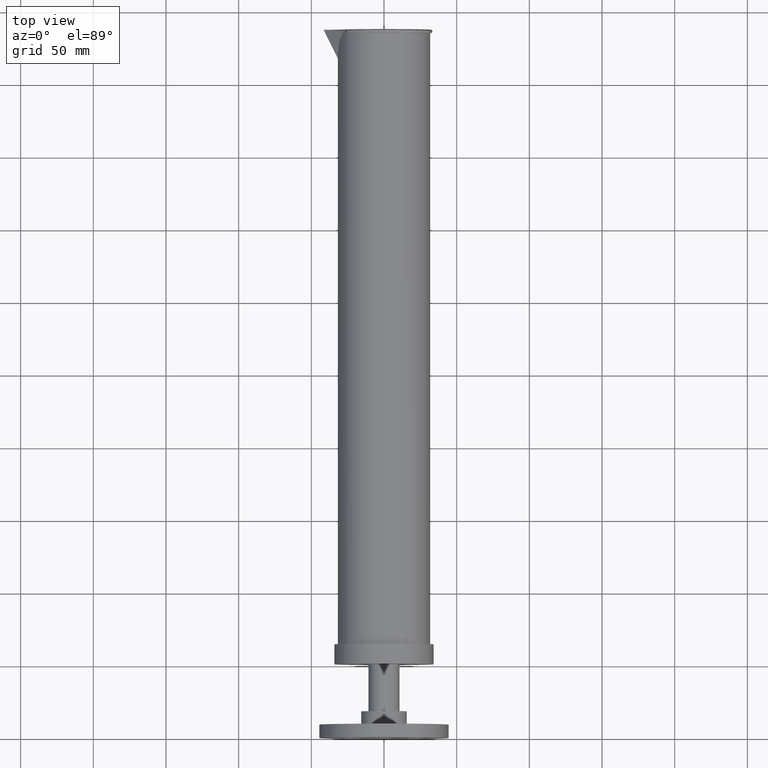
[diagram: clean part render]
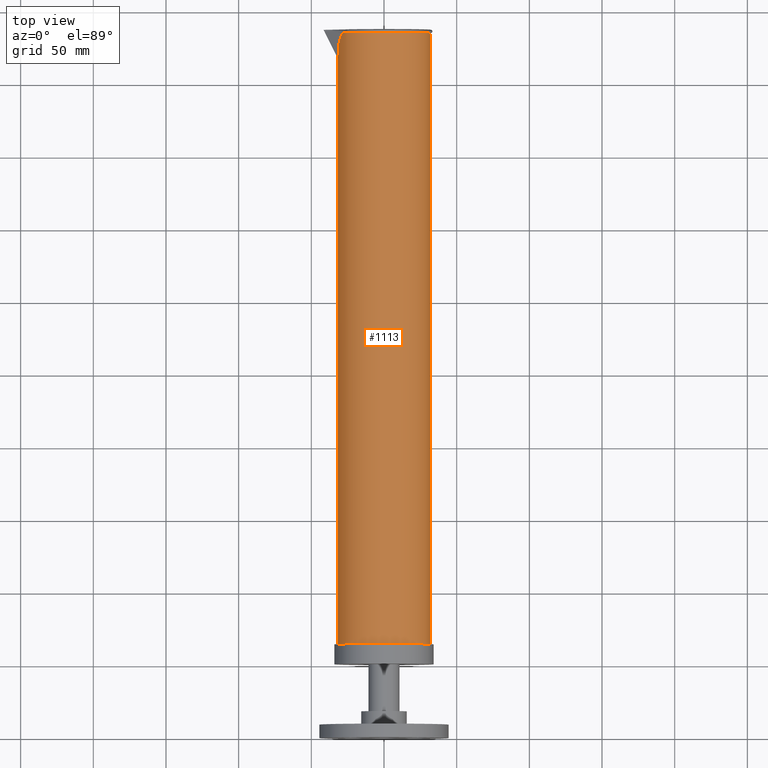
[diagram: same view with one face highlighted and labeled with its STEP entity id]
A machine part, top view. The second image highlights one B-rep face of the part: STEP entity #1113.
In plain terms, the highlighted cylindrical surface (bore or boss wall) has radius 31.75 mm, axis along (0, 1, 0).
Its self-contained STEP definition (entity closure, byte-faithful):
#1024=CARTESIAN_POINT('',(-2.364382558119146,-30.378656116473497,8.852632745656900));
#1025=DIRECTION('',(0.0,0.0,1.0));
#1026=DIRECTION('',(-1.0,0.0,0.0));
#1027=AXIS2_PLACEMENT_3D('',#1024,#1025,#1026);
#1028=CYLINDRICAL_SURFACE('',#1027,1.250000001583445);
#1029=CARTESIAN_POINT('',(-1.114382556535701,-30.378656116473497,5.087154505583708));
#1030=VERTEX_POINT('',#1029);
#1031=CARTESIAN_POINT('',(-2.364382558119146,-30.378656116473497,5.087154505583708));
#1032=DIRECTION('',(0.0,0.0,1.0));
#1033=DIRECTION('',(-1.0,0.0,0.0));
#1034=AXIS2_PLACEMENT_3D('',#1031,#1032,#1033);
#1035=CIRCLE('',#1034,1.250000001583445);
#1036=EDGE_CURVE('',#1030,#1030,#1035,.T.);
#1037=ORIENTED_EDGE('',*,*,#1036,.T.);
#1038=EDGE_LOOP('',(#1037));
#1039=FACE_OUTER_BOUND('',#1038,.T.);
#1040=CARTESIAN_POINT('',(-3.341220309703804,-31.158584325325979,21.645378963824765));
#1041=VERTEX_POINT('',#1040);
#1042=CARTESIAN_POINT('',(-3.341220310631171,-29.598727908905467,21.645378963824765));
#1043=VERTEX_POINT('',#1042);
#1044=CARTESIAN_POINT('',(-2.364382558119146,-30.378656116591252,21.645378963824765));
#1045=DIRECTION('',(0.0,0.0,1.0));
#1046=DIRECTION('',(0.0,1.0,0.0));
#1047=AXIS2_PLACEMENT_3D('',#1044,#1045,#1046);
#1048=CIRCLE('',#1047,1.250000001465692);
#1049=EDGE_CURVE('',#1041,#1043,#1048,.T.);
#1050=ORIENTED_EDGE('',*,*,#1049,.F.);
#1051=CARTESIAN_POINT('',(-3.450386105552418,-30.997603863394950,21.653376049139336));
#1052=VERTEX_POINT('',#1051);
#1053=CARTESIAN_POINT('',(-3.450386100374960,-30.997603860767338,21.653376045109937));
#1054=CARTESIAN_POINT('',(-3.433623127511878,-31.027016114185944,21.655735126720391));
#1055=CARTESIAN_POINT('',(-3.418783268275204,-31.051012905959805,21.655318096572923));
#1056=CARTESIAN_POINT('',(-3.379846094750808,-31.108324386794742,21.649424695242438));
#1057=CARTESIAN_POINT('',(-3.360547924611440,-31.134377041072142,21.645378963824768));
#1058=CARTESIAN_POINT('',(-3.341220309652552,-31.158584325437484,21.645378963824768));
#1059=B_SPLINE_CURVE_WITH_KNOTS('',3,(#1053,#1054,#1055,#1056,#1057,#1058),.UNSPECIFIED.,.F.,.U.,(4,2,4),(-0.497201823748352,-0.236041636832060,0.0),.UNSPECIFIED.);
#1060=EDGE_CURVE('',#1052,#1041,#1059,.T.);
#1061=ORIENTED_EDGE('',*,*,#1060,.F.);
#1062=CARTESIAN_POINT('',(-3.480099449047765,-30.942283495968262,21.650558399335758));
#1063=VERTEX_POINT('',#1062);
#1064=CARTESIAN_POINT('',(-3.480099449168018,-30.942283496030996,21.650558399194946));
#1065=CARTESIAN_POINT('',(-3.475380703157008,-30.951624391842671,21.650690459256030));
#1066=CARTESIAN_POINT('',(-3.470533562788341,-30.960926920469735,21.651013885413459));
#1067=CARTESIAN_POINT('',(-3.460634036850216,-30.979357550961261,21.651971703436107));
#1068=CARTESIAN_POINT('',(-3.455559856717240,-30.988526005998921,21.652608535752108));
#1069=CARTESIAN_POINT('',(-3.450386101202043,-30.997603859316140,21.653376044993813));
#1070=B_SPLINE_CURVE_WITH_KNOTS('',3,(#1064,#1065,#1066,#1067,#1068,#1069),.UNSPECIFIED.,.F.,.U.,(4,2,4),(-0.159599111343110,-0.079833047663906,0.0),.UNSPECIFIED.);
#1071=EDGE_CURVE('',#1063,#1052,#1070,.T.);
#1072=ORIENTED_EDGE('',*,*,#1071,.F.);
#1073=CARTESIAN_POINT('',(-3.614382559624060,-30.378656115811669,20.958554984119939));
#1074=VERTEX_POINT('',#1073);
#1075=CARTESIAN_POINT('',(-2.364382558119146,-30.378656116591252,18.429442900973680));
#1076=DIRECTION('',(0.714574982270093,0.603862678607960,0.353174829366584));
#1077=DIRECTION('',(0.269753532083915,0.227959408725256,-0.935557341856652));
#1078=AXIS2_PLACEMENT_3D('',#1075,#1076,#1077);
#1079=ELLIPSE('',#1078,3.539323580073795,1.250000001465692);
#1080=EDGE_CURVE('',#1074,#1063,#1079,.T.);
#1081=ORIENTED_EDGE('',*,*,#1080,.F.);
#1082=CARTESIAN_POINT('',(-3.480099447256235,-29.815028733584477,21.650558399173772));
#1083=VERTEX_POINT('',#1082);
#1084=CARTESIAN_POINT('',(-2.364382558119146,-30.378656116591252,18.429442898307780));
#1085=DIRECTION('',(0.714574982270093,-0.603862678607960,0.353174829366585));
#1086=DIRECTION('',(-0.269753532083915,0.227959408725256,0.935557341856652));
#1087=AXIS2_PLACEMENT_3D('',#1084,#1085,#1086);
#1088=ELLIPSE('',#1087,3.539323580073795,1.250000001465692);
#1089=EDGE_CURVE('',#1083,#1074,#1088,.T.);
#1090=ORIENTED_EDGE('',*,*,#1089,.F.);
#1091=CARTESIAN_POINT('',(-3.450386104983064,-29.759708368637742,21.653376048647338));
#1092=VERTEX_POINT('',#1091);
#1093=CARTESIAN_POINT('',(-3.450386100665245,-29.759708372688987,21.653376044531630));
#1094=CARTESIAN_POINT('',(-3.455559858552169,-29.768786230149328,21.652608534997054));
#1095=CARTESIAN_POINT('',(-3.460634041005848,-29.777954689485089,21.651971702495317));
#1096=CARTESIAN_POINT('',(-3.470533566325472,-29.796385319299837,21.651013884898422));
#1097=CARTESIAN_POINT('',(-3.475380703989423,-29.805687842823364,21.650690459035960));
#1098=CARTESIAN_POINT('',(-3.480099447437833,-29.815028733491051,21.650558399054532));
#1099=B_SPLINE_CURVE_WITH_KNOTS('',3,(#1093,#1094,#1095,#1096,#1097,#1098),.UNSPECIFIED.,.F.,.U.,(4,2,4),(-0.159568208852993,-0.079751073761785,-0.000000990013946),.UNSPECIFIED.);
#1100=EDGE_CURVE('',#1092,#1083,#1099,.T.);
#1101=ORIENTED_EDGE('',*,*,#1100,.F.);
#1102=CARTESIAN_POINT('',(-3.341220310714192,-29.598727908839184,21.645378963824765));
#1103=CARTESIAN_POINT('',(-3.360971722556512,-29.623465986736321,21.645378963870609));
#1104=CARTESIAN_POINT('',(-3.380681625247191,-29.650116498218839,21.649604288025930));
#1105=CARTESIAN_POINT('',(-3.418432763595662,-29.705891376172481,21.655208403084799));
#1106=CARTESIAN_POINT('',(-3.433346291950687,-29.729810384115627,21.655774085605042));
#1107=CARTESIAN_POINT('',(-3.450386099843038,-29.759708371246344,21.653376044647064));
#1108=B_SPLINE_CURVE_WITH_KNOTS('',3,(#1102,#1103,#1104,#1105,#1106,#1107),.UNSPECIFIED.,.F.,.U.,(4,2,4),(-0.525670168326989,-0.262861870917022,-4.416262E-009),.UNSPECIFIED.);
#1109=EDGE_CURVE('',#1043,#1092,#1108,.T.);
#1110=ORIENTED_EDGE('',*,*,#1109,.F.);
#1111=EDGE_LOOP('',(#1050,#1061,#1072,#1081,#1090,#1101,#1110));
#1112=FACE_BOUND('',#1111,.T.);
#1113=ADVANCED_FACE('',(#1039,#1112),#1028,.T.);